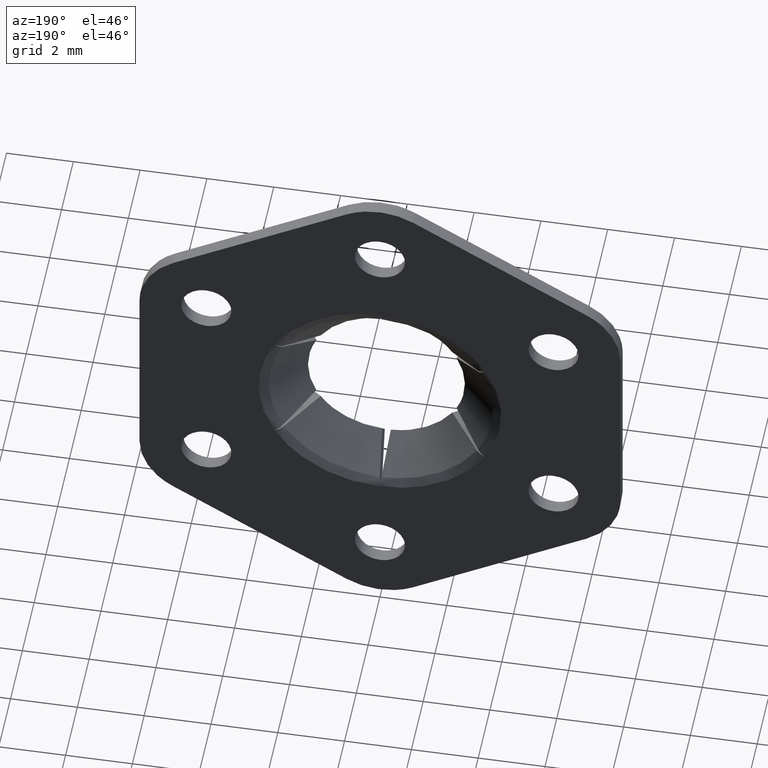
[diagram: clean part render]
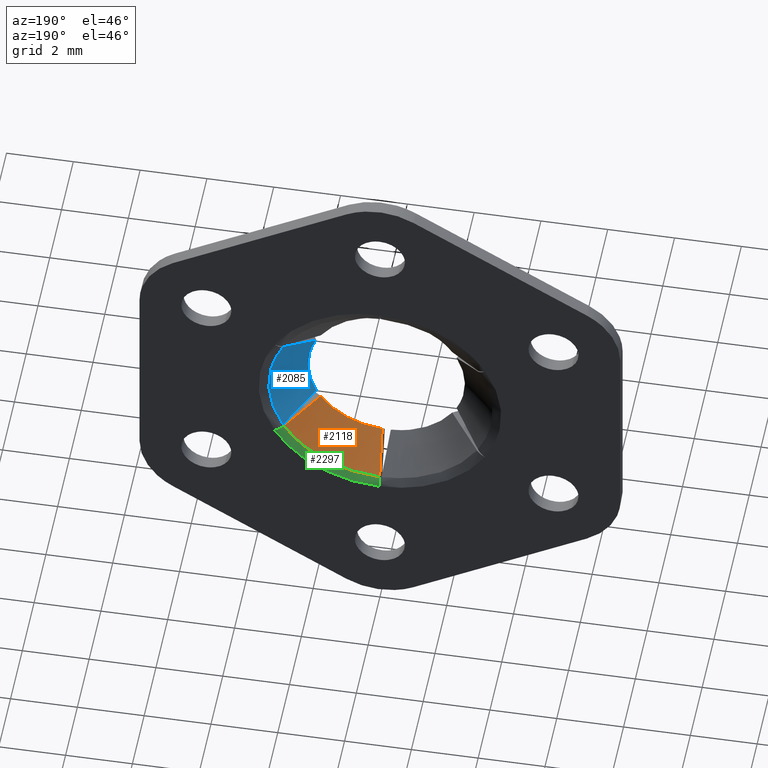
[diagram: same view with three faces highlighted in distinct colors, each labeled with its STEP entity id]
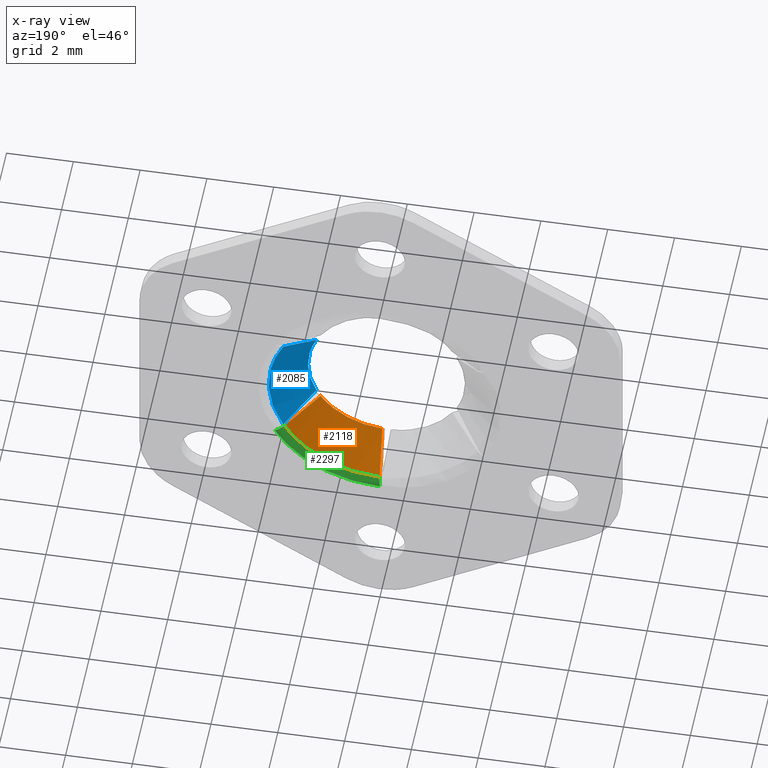
[diagram: x-ray of the same camera — body ghosted, the three highlighted faces saturated]
A machine part, auxiliary view with three faces highlighted in distinct colors.
The next image is the same camera in x-ray (body ghosted, the three faces saturated) — at least one of them is partly hidden behind the body in this view.
Their STEP definitions:

[orange] entity #2118 — the highlighted face is a freeform B-spline surface patch.
#1489=CARTESIAN_POINT('',(0.128391349504312,-1.117157287532256,-2.346490072719690));
#1490=VERTEX_POINT('',#1489);
#1496=CARTESIAN_POINT('',(0.028242522142395,-0.117157287525302,-3.349880947122485));
#1497=VERTEX_POINT('',#1496);
#1498=CARTESIAN_POINT('',(0.128391349504312,-1.117157287532256,-2.346490072719690));
#1499=CARTESIAN_POINT('',(0.094949055140530,-0.784426561373882,-2.681548344170511));
#1500=CARTESIAN_POINT('',(0.061583955244519,-0.450912070371643,-3.015833204423657));
#1501=CARTESIAN_POINT('',(0.028242522142395,-0.117157287525301,-3.349880947122484));
#1502=QUASI_UNIFORM_CURVE('',3,(#1498,#1499,#1500,#1501),.UNSPECIFIED.,.F.,.U.);
#1503=EDGE_CURVE('',#1490,#1497,#1502,.T.);
#1521=CARTESIAN_POINT('',(2.886960738790625,-0.117157287525302,-1.699399215203035));
#1522=VERTEX_POINT('',#1521);
#1523=CARTESIAN_POINT('',(1.967924337951090,-1.117157287532192,-1.284435206656816));
#1524=VERTEX_POINT('',#1523);
#1525=CARTESIAN_POINT('',(2.886960738790625,-0.117157287525301,-1.699399215203034));
#1526=CARTESIAN_POINT('',(2.580996190985446,-0.450912070371629,-1.561249871918821));
#1527=CARTESIAN_POINT('',(2.274814459957598,-0.784426561373853,-1.423002465902181));
#1528=CARTESIAN_POINT('',(1.967924337944389,-1.117157287524778,-1.284435206653791));
#1529=QUASI_UNIFORM_CURVE('',3,(#1525,#1526,#1527,#1528),.UNSPECIFIED.,.F.,.U.);
#1530=EDGE_CURVE('',#1522,#1524,#1529,.T.);
#1937=CARTESIAN_POINT('',(0.128391349504312,-1.117157287532256,-2.346490072719690));
#1938=CARTESIAN_POINT('',(0.254474667799275,-1.117157287531035,-2.339600296219667));
#1939=CARTESIAN_POINT('',(0.505521126305721,-1.117157287528979,-2.305419278518504));
#1940=CARTESIAN_POINT('',(0.902039484032662,-1.117157287526972,-2.184324718589795));
#1941=CARTESIAN_POINT('',(1.244993240681990,-1.117157287526609,-2.005931266873057));
#1942=CARTESIAN_POINT('',(1.557596863690516,-1.117157287527588,-1.770978280676425));
#1943=CARTESIAN_POINT('',(1.784390392510806,-1.117157287529408,-1.541612997151514));
#1944=CARTESIAN_POINT('',(1.917732093901019,-1.117157287531309,-1.361337548831043));
#1945=CARTESIAN_POINT('',(1.967924337951090,-1.117157287532192,-1.284435206656816));
#1946=B_SPLINE_CURVE_WITH_KNOTS('',3,(#1937,#1938,#1939,#1940,#1941,#1942,#1943,#1944,#1945),.UNSPECIFIED.,.F.,.U.,(4,1,1,1,1,1,4),(4.668260E-009,0.378813771328454,0.757628483033382,1.239753061524811,1.532474570851576,1.928509316858783,2.204008557682962),.UNSPECIFIED.);
#1947=EDGE_CURVE('',#1490,#1524,#1946,.T.);
#2086=CARTESIAN_POINT('',(-0.000688066917481,-1.142157287532430,-2.324999898170806));
#2087=CARTESIAN_POINT('',(-0.000998991779927,-0.091532287525124,-3.375624852170711));
#2088=CARTESIAN_POINT('',(1.406140317357257,-1.142157287532430,-2.325416238864220));
#2089=CARTESIAN_POINT('',(2.041549423139656,-0.091532287525124,-3.376229329612952));
#2090=CARTESIAN_POINT('',(2.059261415509253,-1.142157287532430,-1.079382889675937));
#2091=CARTESIAN_POINT('',(2.989804006777893,-0.091532287525124,-1.567136286872323));
#2099=(BOUNDED_SURFACE()B_SPLINE_SURFACE(1,2,((#2086,#2088,#2090),(#2087,#2089,#2091)),.UNSPECIFIED.,.F.,.F.,.U.)B_SPLINE_SURFACE_WITH_KNOTS((2,2),(3,3),(0.0,1.0),(0.0,3.767119257304119),.UNSPECIFIED.)GEOMETRIC_REPRESENTATION_ITEM()RATIONAL_B_SPLINE_SURFACE(((1.0,0.854224587701103,0.996865224969150),(1.0,0.854224587701103,0.996865224969150)))REPRESENTATION_ITEM('')SURFACE());
#2100=ORIENTED_EDGE('',*,*,#1503,.F.);
#2101=ORIENTED_EDGE('',*,*,#1947,.T.);
#2102=ORIENTED_EDGE('',*,*,#1530,.F.);
#2103=CARTESIAN_POINT('',(0.028242522142395,-0.117157287525302,-3.349880947122485));
#2104=CARTESIAN_POINT('',(0.243962559476107,-0.117157287525302,-3.348082861449486));
#2105=CARTESIAN_POINT('',(0.675042229497147,-0.117157287525302,-3.302616790343505));
#2106=CARTESIAN_POINT('',(1.236122986990369,-0.117157287525302,-3.130154430594670));
#2107=CARTESIAN_POINT('',(1.687485078301412,-0.117157287525302,-2.904683894389488));
#2108=CARTESIAN_POINT('',(2.016272410858352,-0.117157287525302,-2.683577524084275));
#2109=CARTESIAN_POINT('',(2.312067095100371,-0.117157287525302,-2.434085942414523));
#2110=CARTESIAN_POINT('',(2.609114859625585,-0.117157287525302,-2.119939188441968));
#2111=CARTESIAN_POINT('',(2.795774951415778,-0.117157287525302,-1.854328502104076));
#2112=CARTESIAN_POINT('',(2.886960738790625,-0.117157287525302,-1.699399215203035));
#2113=B_SPLINE_CURVE_WITH_KNOTS('',3,(#2103,#2104,#2105,#2106,#2107,#2108,#2109,#2110,#2111,#2112),.UNSPECIFIED.,.F.,.U.,(4,1,1,1,1,1,1,4),(4.000619E-009,0.647181190861074,1.294365440535563,1.752780924185344,2.157269964918663,2.480862545828793,2.912319228045163,3.451635401453513),.UNSPECIFIED.);
#2114=EDGE_CURVE('',#1497,#1522,#2113,.T.);
#2115=ORIENTED_EDGE('',*,*,#2114,.F.);
#2116=EDGE_LOOP('',(#2100,#2101,#2102,#2115));
#2117=FACE_OUTER_BOUND('',#2116,.T.);
#2118=ADVANCED_FACE('',(#2117),#2099,.F.);

[blue] entity #2085 — the highlighted face is a freeform B-spline surface patch.
#1581=CARTESIAN_POINT('',(2.096315687455475,-1.117157287532256,-1.062054866062908));
#1582=VERTEX_POINT('',#1581);
#1588=CARTESIAN_POINT('',(2.915203260932750,-0.117157287525302,-1.650481731918970));
#1589=VERTEX_POINT('',#1588);
#1590=CARTESIAN_POINT('',(2.096315687455475,-1.117157287532256,-1.062054866062908));
#1591=CARTESIAN_POINT('',(2.369763515098062,-0.784426561373866,-1.258545878268189));
#1592=CARTESIAN_POINT('',(2.642580146229797,-0.450912070371636,-1.454583332504525));
#1593=CARTESIAN_POINT('',(2.915203260932751,-0.117157287525302,-1.650481731918970));
#1594=QUASI_UNIFORM_CURVE('',3,(#1590,#1591,#1592,#1593),.UNSPECIFIED.,.F.,.U.);
#1595=EDGE_CURVE('',#1582,#1589,#1594,.T.);
#1613=CARTESIAN_POINT('',(2.915203260932795,-0.117157287525302,1.650481731918900));
#1614=VERTEX_POINT('',#1613);
#1615=CARTESIAN_POINT('',(2.096315687455545,-1.117157287532276,1.062054866062942));
#1616=VERTEX_POINT('',#1615);
#1617=CARTESIAN_POINT('',(2.915203260932795,-0.117157287525300,1.650481731918898));
#1618=CARTESIAN_POINT('',(2.642580146229842,-0.450912070371624,1.454583332504468));
#1619=CARTESIAN_POINT('',(2.369763515098109,-0.784426561373844,1.258545878268148));
#1620=CARTESIAN_POINT('',(2.096315687449523,-1.117157287524772,1.062054866058570));
#1621=QUASI_UNIFORM_CURVE('',3,(#1617,#1618,#1619,#1620),.UNSPECIFIED.,.F.,.U.);
#1622=EDGE_CURVE('',#1614,#1616,#1621,.T.);
#1906=CARTESIAN_POINT('',(2.096315687455475,-1.117157287532256,-1.062054866062908));
#1907=CARTESIAN_POINT('',(2.184557017519369,-1.117157287530365,-0.887994529501976));
#1908=CARTESIAN_POINT('',(2.299693934829258,-1.117157287527872,-0.566734572401689));
#1909=CARTESIAN_POINT('',(2.352005988287493,-1.117157287526781,-0.160871762577831));
#1910=CARTESIAN_POINT('',(2.349437137306147,-1.117157287526803,0.189574431828892));
#1911=CARTESIAN_POINT('',(2.294283392795419,-1.117157287528037,0.583293373022524));
#1912=CARTESIAN_POINT('',(2.181958138773630,-1.117157287530419,0.893112416299043));
#1913=CARTESIAN_POINT('',(2.096315687455545,-1.117157287532276,1.062054866062942));
#1914=B_SPLINE_CURVE_WITH_KNOTS('',3,(#1906,#1907,#1908,#1909,#1910,#1911,#1912,#1913),.UNSPECIFIED.,.F.,.U.,(4,1,1,1,1,4),(4.668306E-009,0.585440045421663,1.015912947777344,1.222532489264731,1.635787509167269,2.204008557682917),.UNSPECIFIED.);
#1915=EDGE_CURVE('',#1582,#1616,#1914,.T.);
#2053=CARTESIAN_POINT('',(2.013164942153399,-1.142157287532451,-1.163095832515426));
#2054=CARTESIAN_POINT('',(2.922877379735970,-0.091532287525123,-1.688677578344931));
#2055=CARTESIAN_POINT('',(2.716939695907881,-1.142157287532450,0.055045116684799));
#2056=CARTESIAN_POINT('',(3.944675080016750,-0.091532287525123,0.079918998713949));
#2057=CARTESIAN_POINT('',(1.964403710624221,-1.142157287532451,1.243681254026145));
#2058=CARTESIAN_POINT('',(2.852081839012789,-0.091532287525123,1.805678078770008));
#2066=(BOUNDED_SURFACE()B_SPLINE_SURFACE(1,2,((#2053,#2055,#2057),(#2054,#2056,#2058)),.UNSPECIFIED.,.F.,.F.,.U.)B_SPLINE_SURFACE_WITH_KNOTS((2,2),(3,3),(0.0,1.0),(0.0,3.767119257304120),.UNSPECIFIED.)GEOMETRIC_REPRESENTATION_ITEM()RATIONAL_B_SPLINE_SURFACE(((1.0,0.854224587701103,0.996865224969150),(1.0,0.854224587701103,0.996865224969150)))REPRESENTATION_ITEM('')SURFACE());
#2067=ORIENTED_EDGE('',*,*,#1595,.F.);
#2068=ORIENTED_EDGE('',*,*,#1915,.T.);
#2069=ORIENTED_EDGE('',*,*,#1622,.F.);
#2070=CARTESIAN_POINT('',(2.915203260932750,-0.117157287525302,-1.650481731918970));
#2071=CARTESIAN_POINT('',(3.012647896259385,-0.117157287525302,-1.478407024119304));
#2072=CARTESIAN_POINT('',(3.169451577529338,-0.117157287525302,-1.133361980877947));
#2073=CARTESIAN_POINT('',(3.298096639227915,-0.117157287525302,-0.645028277687539));
#2074=CARTESIAN_POINT('',(3.361001116544443,-0.117157287525302,-0.126658746040260));
#2075=CARTESIAN_POINT('',(3.345602007190438,-0.117157287525302,0.351709932380699));
#2076=CARTESIAN_POINT('',(3.260906990089317,-0.117157287525302,0.793926488446247));
#2077=CARTESIAN_POINT('',(3.135840986203950,-0.117157287525304,1.207298030998770));
#2078=CARTESIAN_POINT('',(3.012650395227380,-0.117157287525301,1.478407626606337));
#2079=CARTESIAN_POINT('',(2.915203260932795,-0.117157287525302,1.650481731918900));
#2080=B_SPLINE_CURVE_WITH_KNOTS('',3,(#2070,#2071,#2072,#2073,#2074,#2075,#2076,#2077,#2078,#2079),.UNSPECIFIED.,.F.,.U.,(4,1,1,1,1,1,1,4),(4.002085E-009,0.593248615053163,1.132569091676451,1.510093869458072,2.157269964918803,2.561760488284024,2.858386790401810,3.451635401452851),.UNSPECIFIED.);
#2081=EDGE_CURVE('',#1589,#1614,#2080,.T.);
#2082=ORIENTED_EDGE('',*,*,#2081,.F.);
#2083=EDGE_LOOP('',(#2067,#2068,#2069,#2082));
#2084=FACE_OUTER_BOUND('',#2083,.T.);
#2085=ADVANCED_FACE('',(#2084),#2066,.F.);

[green] entity #2297 — the highlighted face is a freeform B-spline surface patch.
#1455=CARTESIAN_POINT('',(2.842171E-013,0.0,-3.632842712467095));
#1456=VERTEX_POINT('',#1455);
#1496=CARTESIAN_POINT('',(0.028242522142395,-0.117157287525302,-3.349880947122485));
#1497=VERTEX_POINT('',#1496);
#1505=CARTESIAN_POINT('',(2.842171E-013,0.0,-3.632842712467095));
#1506=CARTESIAN_POINT('',(0.004897192518553,0.000056162163146,-3.583777751723502));
#1507=CARTESIAN_POINT('',(0.015340634798790,-0.019486841660833,-3.479144927182503));
#1508=CARTESIAN_POINT('',(0.024308732902812,-0.077729740241331,-3.389293572599912));
#1509=CARTESIAN_POINT('',(0.028242522142395,-0.117157287525302,-3.349880947122485));
#1510=B_SPLINE_CURVE_WITH_KNOTS('',3,(#1505,#1506,#1507,#1508,#1509),.UNSPECIFIED.,.F.,.U.,(4,1,4),(6.911040E-009,0.147914000662995,0.315546704420753),.UNSPECIFIED.);
#1511=EDGE_CURVE('',#1456,#1497,#1510,.T.);
#1521=CARTESIAN_POINT('',(2.886960738790625,-0.117157287525302,-1.699399215203035));
#1522=VERTEX_POINT('',#1521);
#1548=CARTESIAN_POINT('',(3.146134076949720,0.0,-1.816421356233095));
#1549=VERTEX_POINT('',#1548);
#1555=CARTESIAN_POINT('',(2.886960738790625,-0.117157287525302,-1.699399215203035));
#1556=CARTESIAN_POINT('',(2.918822228133454,-0.082381605074553,-1.713785338890709));
#1557=CARTESIAN_POINT('',(2.999394690402819,-0.022191720658048,-1.750165477796186));
#1558=CARTESIAN_POINT('',(3.095197053088827,0.000091400216725,-1.793422232819243));
#1559=CARTESIAN_POINT('',(3.146134076949720,0.0,-1.816421356233095));
#1560=B_SPLINE_CURVE_WITH_KNOTS('',3,(#1555,#1556,#1557,#1558,#1559),.UNSPECIFIED.,.F.,.U.,(4,1,4),(6.911013E-009,0.147914000643646,0.315546704379488),.UNSPECIFIED.);
#1561=EDGE_CURVE('',#1522,#1549,#1560,.T.);
#2103=CARTESIAN_POINT('',(0.028242522142395,-0.117157287525302,-3.349880947122485));
#2104=CARTESIAN_POINT('',(0.243962559476107,-0.117157287525302,-3.348082861449486));
#2105=CARTESIAN_POINT('',(0.675042229497147,-0.117157287525302,-3.302616790343505));
#2106=CARTESIAN_POINT('',(1.236122986990369,-0.117157287525302,-3.130154430594670));
#2107=CARTESIAN_POINT('',(1.687485078301412,-0.117157287525302,-2.904683894389488));
#2108=CARTESIAN_POINT('',(2.016272410858352,-0.117157287525302,-2.683577524084275));
#2109=CARTESIAN_POINT('',(2.312067095100371,-0.117157287525302,-2.434085942414523));
#2110=CARTESIAN_POINT('',(2.609114859625585,-0.117157287525302,-2.119939188441968));
#2111=CARTESIAN_POINT('',(2.795774951415778,-0.117157287525302,-1.854328502104076));
#2112=CARTESIAN_POINT('',(2.886960738790625,-0.117157287525302,-1.699399215203035));
#2113=B_SPLINE_CURVE_WITH_KNOTS('',3,(#2103,#2104,#2105,#2106,#2107,#2108,#2109,#2110,#2111,#2112),.UNSPECIFIED.,.F.,.U.,(4,1,1,1,1,1,1,4),(4.000619E-009,0.647181190861074,1.294365440535563,1.752780924185344,2.157269964918663,2.480862545828793,2.912319228045163,3.451635401453513),.UNSPECIFIED.);
#2114=EDGE_CURVE('',#1497,#1522,#2113,.T.);
#2262=CARTESIAN_POINT('',(-0.165111091671931,-0.128123278031283,-3.335359318604418));
#2263=CARTESIAN_POINT('',(1.987870427238097,-0.128123278031283,-3.441938878699750));
#2264=CARTESIAN_POINT('',(2.971503874417275,-0.128123278031283,-1.523826821235783));
#2265=CARTESIAN_POINT('',(-0.171288712088591,0.006712726488333,-3.460151563721725));
#2266=CARTESIAN_POINT('',(2.062246465895648,0.006712726488333,-3.570718790906994));
#2267=CARTESIAN_POINT('',(3.082682492503456,0.006712726488333,-1.580840699510088));
#2268=CARTESIAN_POINT('',(-0.180370969458658,-0.000290371485029,-3.643619503073764));
#2269=CARTESIAN_POINT('',(2.171593152757809,-0.000290371485029,-3.760049346667006));
#2270=CARTESIAN_POINT('',(3.246135854057332,-0.000290371485029,-1.664661763484232));
#2278=(BOUNDED_SURFACE()B_SPLINE_SURFACE(2,2,((#2262,#2265,#2268),(#2263,#2266,#2269),(#2264,#2267,#2270)),.UNSPECIFIED.,.F.,.F.,.U.)B_SPLINE_SURFACE_WITH_KNOTS((3,3),(3,3),(0.0,4.300601718029878),(0.0,0.350053900831166),.UNSPECIFIED.)GEOMETRIC_REPRESENTATION_ITEM()RATIONAL_B_SPLINE_SURFACE(((0.866748191109735,0.787025595019721,0.865566950783516),(0.725999544644705,0.659222862497679,0.725010122402181),(0.861488265951320,0.782249472300317,0.860314194068915)))REPRESENTATION_ITEM('')SURFACE());
#2279=CARTESIAN_POINT('',(2.842171E-013,0.0,-3.632842712467095));
#2280=CARTESIAN_POINT('',(0.208048326694383,0.0,-3.632858373625888));
#2281=CARTESIAN_POINT('',(0.554788960702331,0.0,-3.602973794169393));
#2282=CARTESIAN_POINT('',(1.008999453640137,0.0,-3.497057917267858));
#2283=CARTESIAN_POINT('',(1.402379069226638,0.0,-3.359922861559836));
#2284=CARTESIAN_POINT('',(1.867279476125491,0.0,-3.135405508740413));
#2285=CARTESIAN_POINT('',(2.298632311635235,0.0,-2.831601034341493));
#2286=CARTESIAN_POINT('',(2.763856567963844,0.0,-2.385023712876618));
#2287=CARTESIAN_POINT('',(3.007484006978740,0.0,-2.056689553088797));
#2288=CARTESIAN_POINT('',(3.146134076949720,0.0,-1.816421356233095));
#2289=B_SPLINE_CURVE_WITH_KNOTS('',3,(#2279,#2280,#2281,#2282,#2283,#2284,#2285,#2286,#2287,#2288),.UNSPECIFIED.,.F.,.U.,(4,1,1,1,1,1,1,4),(3.268763E-009,0.624143605669495,1.040242735571054,1.396897404511840,1.872438140003377,2.585744276103291,2.972121446446974,3.804314601770362),.UNSPECIFIED.);
#2290=EDGE_CURVE('',#1456,#1549,#2289,.T.);
#2291=ORIENTED_EDGE('',*,*,#2290,.F.);
#2292=ORIENTED_EDGE('',*,*,#1511,.T.);
#2293=ORIENTED_EDGE('',*,*,#2114,.T.);
#2294=ORIENTED_EDGE('',*,*,#1561,.T.);
#2295=EDGE_LOOP('',(#2291,#2292,#2293,#2294));
#2296=FACE_OUTER_BOUND('',#2295,.T.);
#2297=ADVANCED_FACE('',(#2296),#2278,.T.);